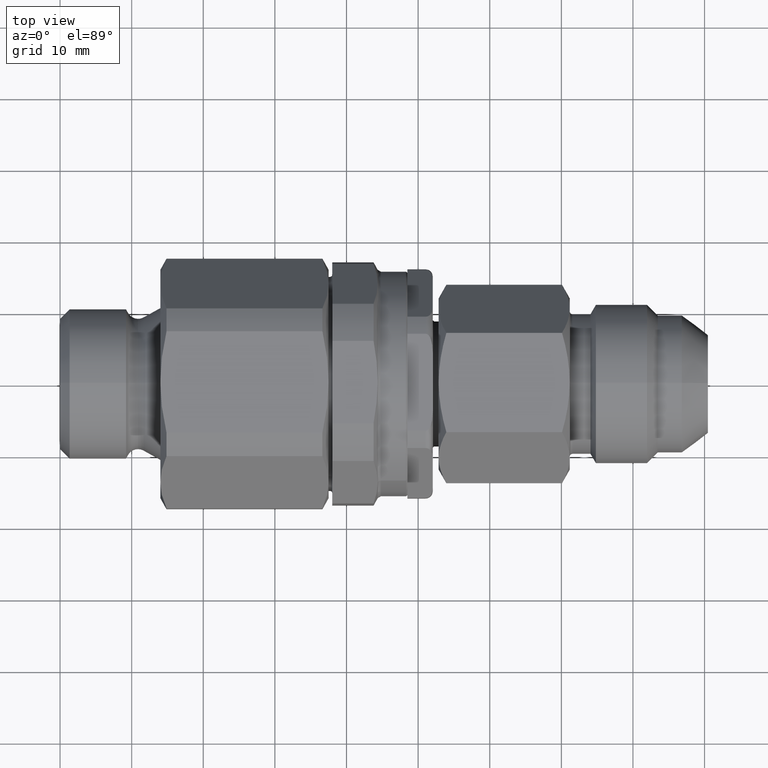
[diagram: clean part render]
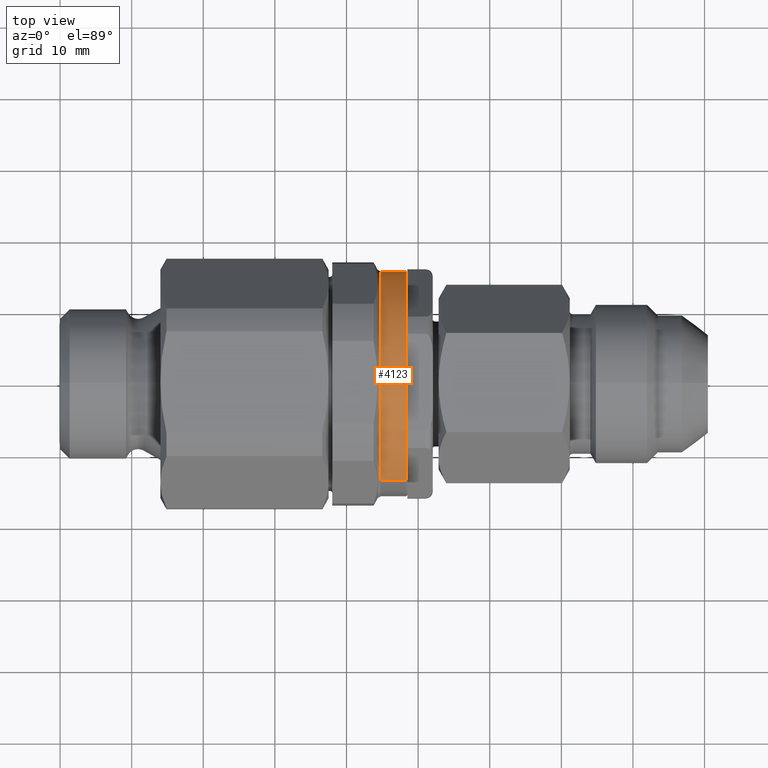
[diagram: same view with one face highlighted and labeled with its STEP entity id]
A machine part, top view. The second image highlights one B-rep face of the part: STEP entity #4123.
In plain terms, the highlighted cylindrical surface (partial cylindrical patch) has radius 15.75 mm, axis along (1, -0, -0).
Its self-contained STEP definition (entity closure, byte-faithful):
#137 = CARTESIAN_POINT ( 'NONE',  ( 44.78867513459481100, 13.63990010960491400, -7.874999999999996400 ) ) ;
#595 = CARTESIAN_POINT ( 'NONE',  ( 44.78867513459481100, -13.63990010960491300, 7.874999999999998200 ) ) ;
#757 = EDGE_CURVE ( 'NONE', #4216, #1254, #5651, .T. ) ;
#760 = EDGE_CURVE ( 'NONE', #4298, #4236, #5656, .T. ) ;
#761 = EDGE_CURVE ( 'NONE', #1254, #4236, #5655, .T. ) ;
#775 = EDGE_CURVE ( 'NONE', #4216, #4298, #5677, .T. ) ;
#817 = AXIS2_PLACEMENT_3D ( 'NONE', #4830, #4832, #4871 ) ;
#818 = AXIS2_PLACEMENT_3D ( 'NONE', #4848, #4849, #4857 ) ;
#1084 = ORIENTED_EDGE ( 'NONE', *, *, #775, .F. ) ;
#1087 = ORIENTED_EDGE ( 'NONE', *, *, #757, .T. ) ;
#1088 = ORIENTED_EDGE ( 'NONE', *, *, #760, .F. ) ;
#1089 = ORIENTED_EDGE ( 'NONE', *, *, #761, .T. ) ;
#1254 = VERTEX_POINT ( 'NONE', #595 ) ;
#1706 = CARTESIAN_POINT ( 'NONE',  ( 45.03379999999999900, 2.116976098159013000E-017, 8.142194051363591000E-017 ) ) ;
#1707 = DIRECTION ( 'NONE',  ( 1.000000000000000000, -1.283015817066129300E-017, -4.934663061432551000E-017 ) ) ;
#1708 = DIRECTION ( 'NONE',  ( 0.0000000000000000000, 0.8660254037844388200, -0.4999999999999996700 ) ) ;
#2543 = FACE_OUTER_BOUND ( 'NONE', #4988, .T. ) ;
#2544 = CYLINDRICAL_SURFACE ( 'NONE', #2878, 15.75000000000000400 ) ;
#2878 = AXIS2_PLACEMENT_3D ( 'NONE', #1706, #1707, #1708 ) ;
#4123 = ADVANCED_FACE ( 'NONE', ( #2543 ), #2544, .T. ) ;
#4216 = VERTEX_POINT ( 'NONE', #137 ) ;
#4236 = VERTEX_POINT ( 'NONE', #5838 ) ;
#4298 = VERTEX_POINT ( 'NONE', #5917 ) ;
#4793 = CARTESIAN_POINT ( 'NONE',  ( 45.03379999999999900, 13.63990010960491400, -7.874999999999996400 ) ) ;
#4819 = DIRECTION ( 'NONE',  ( 1.000000000000000000, -1.283015817066129300E-017, -4.934663061432551000E-017 ) ) ;
#4830 = CARTESIAN_POINT ( 'NONE',  ( 44.78867513459481100, 2.431475177630072400E-017, 9.351802670117187300E-017 ) ) ;
#4832 = DIRECTION ( 'NONE',  ( 1.000000000000000000, -1.283015817066129300E-017, -4.934663061432551000E-017 ) ) ;
#4834 = DIRECTION ( 'NONE',  ( 1.000000000000000000, -1.283015817066129300E-017, -4.934663061432551000E-017 ) ) ;
#4846 = CARTESIAN_POINT ( 'NONE',  ( 45.03379999999999900, -13.63990010960491300, 7.874999999999998200 ) ) ;
#4848 = CARTESIAN_POINT ( 'NONE',  ( 48.30000000000000400, -2.073610163542378600E-017, -7.975402439887406600E-017 ) ) ;
#4849 = DIRECTION ( 'NONE',  ( 1.000000000000000000, -1.283015817066129300E-017, -4.934663061432551000E-017 ) ) ;
#4857 = DIRECTION ( 'NONE',  ( 0.0000000000000000000, 0.8660254037844388200, -0.4999999999999996700 ) ) ;
#4871 = DIRECTION ( 'NONE',  ( 0.0000000000000000000, 0.8660254037844388200, -0.4999999999999996700 ) ) ;
#4988 = EDGE_LOOP ( 'NONE', ( #1087, #1089, #1088, #1084 ) ) ;
#5651 = CIRCLE ( 'NONE', #817, 15.75000000000000400 ) ;
#5655 = LINE ( 'NONE', #4846, #5657 ) ;
#5656 = CIRCLE ( 'NONE', #818, 15.75000000000000400 ) ;
#5657 = VECTOR ( 'NONE', #4834, 1000.000000000000000 ) ;
#5677 = LINE ( 'NONE', #4793, #5679 ) ;
#5679 = VECTOR ( 'NONE', #4819, 1000.000000000000000 ) ;
#5838 = CARTESIAN_POINT ( 'NONE',  ( 48.30000000000000400, -13.63990010960490900, 7.874999999999996400 ) ) ;
#5917 = CARTESIAN_POINT ( 'NONE',  ( 48.30000000000000400, 13.63990010960491400, -7.874999999999996400 ) ) ;